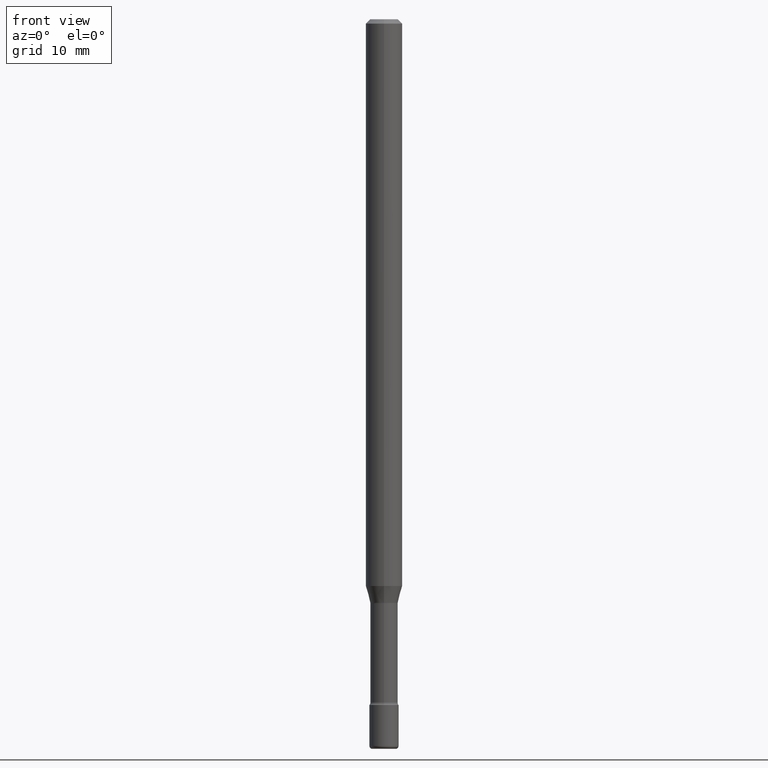
[diagram: clean part render]
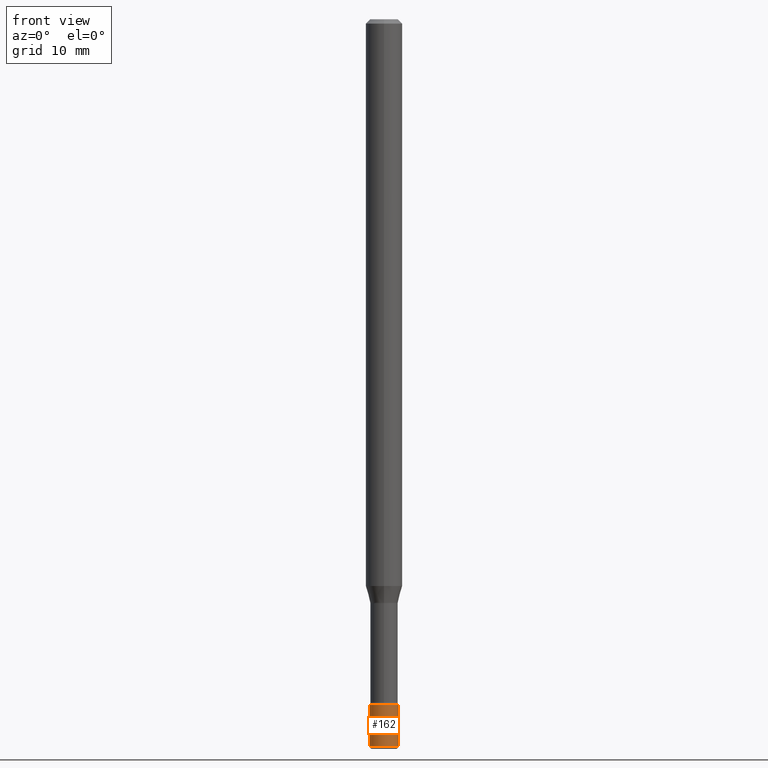
[diagram: same view with one face highlighted and labeled with its STEP entity id]
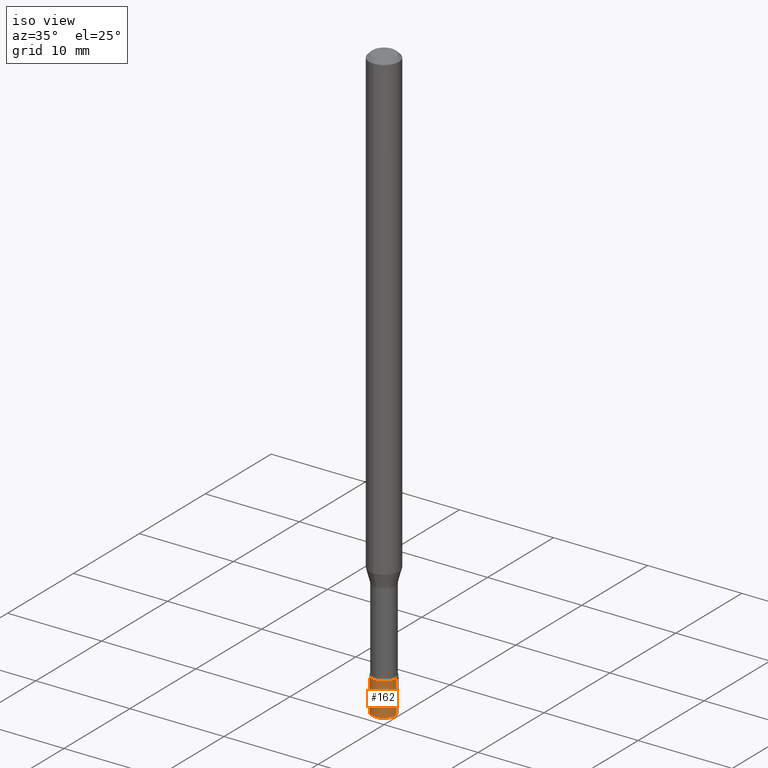
[diagram: same view with one face highlighted and labeled with its STEP entity id]
A machine part, front view. The second image highlights one B-rep face of the part: STEP entity #162.
A second angle (iso view) of the same face is appended — the face is thin or edge-on in the first view.
In plain terms, the highlighted cylindrical surface (edge-blend (fillet) strip) has radius 1.27 mm, axis along (-0, 0, 1).
Its self-contained STEP definition (entity closure, byte-faithful):
#21 = VECTOR ( 'NONE', #245, 39.37007874015748143 ) ;
#22 = DIRECTION ( 'NONE',  ( -2.445468806185136597E-29, 3.491481338843145583E-15, 1.000000000000000000 ) ) ;
#34 = AXIS2_PLACEMENT_3D ( 'NONE', #561, #22, #208 ) ;
#68 = LINE ( 'NONE', #435, #21 ) ;
#83 = CARTESIAN_POINT ( 'NONE',  ( 0.05000000000000004441, -9.042936667603745051E-15, -2.489999999999999769 ) ) ;
#98 = DIRECTION ( 'NONE',  ( -2.445468806185136597E-29, 3.491481338843145583E-15, 1.000000000000000000 ) ) ;
#109 = DIRECTION ( 'NONE',  ( -2.445468806185136877E-29, 3.491481338843145188E-15, 1.000000000000000000 ) ) ;
#142 = VECTOR ( 'NONE', #109, 39.37007874015748143 ) ;
#156 = DIRECTION ( 'NONE',  ( 1.000000000000000000, -6.982962677686267499E-15, 4.876176775795936353E-29 ) ) ;
#157 = CARTESIAN_POINT ( 'NONE',  ( 0.05000000000000000971, -3.491481338843134341E-16, 2.438088387897968597E-30 ) ) ;
#162 = ADVANCED_FACE ( 'NONE', ( #368 ), #553, .T. ) ;
#181 = CARTESIAN_POINT ( 'NONE',  ( -0.05000000000000004441, -8.338517165839381307E-15, -2.489999999999999769 ) ) ;
#194 = EDGE_CURVE ( 'NONE', #505, #560, #287, .T. ) ;
#205 = ORIENTED_EDGE ( 'NONE', *, *, #194, .F. ) ;
#208 = DIRECTION ( 'NONE',  ( 1.000000000000000000, -6.982962677686273021E-15, 0.000000000000000000 ) ) ;
#209 = ORIENTED_EDGE ( 'NONE', *, *, #414, .F. ) ;
#228 = CIRCLE ( 'NONE', #34, 0.05000000000000000971 ) ;
#232 = DIRECTION ( 'NONE',  ( -2.445468806185136597E-29, 3.491481338843145583E-15, 1.000000000000000000 ) ) ;
#245 = DIRECTION ( 'NONE',  ( -2.445468806185136877E-29, 3.491481338843145188E-15, 1.000000000000000000 ) ) ;
#247 = EDGE_CURVE ( 'NONE', #521, #560, #328, .T. ) ;
#253 = ORIENTED_EDGE ( 'NONE', *, *, #247, .T. ) ;
#284 = CARTESIAN_POINT ( 'NONE',  ( 0.000000000000000000, 0.000000000000000000, 0.000000000000000000 ) ) ;
#287 = CIRCLE ( 'NONE', #514, 0.05000000000000000278 ) ;
#328 = LINE ( 'NONE', #157, #142 ) ;
#337 = ORIENTED_EDGE ( 'NONE', *, *, #422, .T. ) ;
#351 = CARTESIAN_POINT ( 'NONE',  ( -0.05000000000000000278, -8.094113472120361341E-15, -2.350000000000000089 ) ) ;
#368 = FACE_OUTER_BOUND ( 'NONE', #425, .T. ) ;
#414 = EDGE_CURVE ( 'NONE', #523, #505, #68, .T. ) ;
#421 = CARTESIAN_POINT ( 'NONE',  ( 5.746851694535070554E-29, -8.204981146281391784E-15, -2.350000000000000089 ) ) ;
#422 = EDGE_CURVE ( 'NONE', #523, #521, #228, .T. ) ;
#425 = EDGE_LOOP ( 'NONE', ( #209, #337, #253, #205 ) ) ;
#435 = CARTESIAN_POINT ( 'NONE',  ( -0.05000000000000000971, 3.552713678800501620E-16, -2.459467545127453311E-30 ) ) ;
#491 = CARTESIAN_POINT ( 'NONE',  ( 0.05000000000000000278, -8.554129280165706697E-15, -2.350000000000000089 ) ) ;
#503 = DIRECTION ( 'NONE',  ( 1.000000000000000000, -6.982962677686274599E-15, 0.000000000000000000 ) ) ;
#505 = VERTEX_POINT ( 'NONE', #351 ) ;
#514 = AXIS2_PLACEMENT_3D ( 'NONE', #421, #98, #503 ) ;
#521 = VERTEX_POINT ( 'NONE', #83 ) ;
#523 = VERTEX_POINT ( 'NONE', #181 ) ;
#540 = AXIS2_PLACEMENT_3D ( 'NONE', #284, #232, #156 ) ;
#553 = CYLINDRICAL_SURFACE ( 'NONE', #540, 0.05000000000000000971 ) ;
#560 = VERTEX_POINT ( 'NONE', #491 ) ;
#561 = CARTESIAN_POINT ( 'NONE',  ( 6.089217327400989947E-29, -8.693788533719431716E-15, -2.489999999999999769 ) ) ;